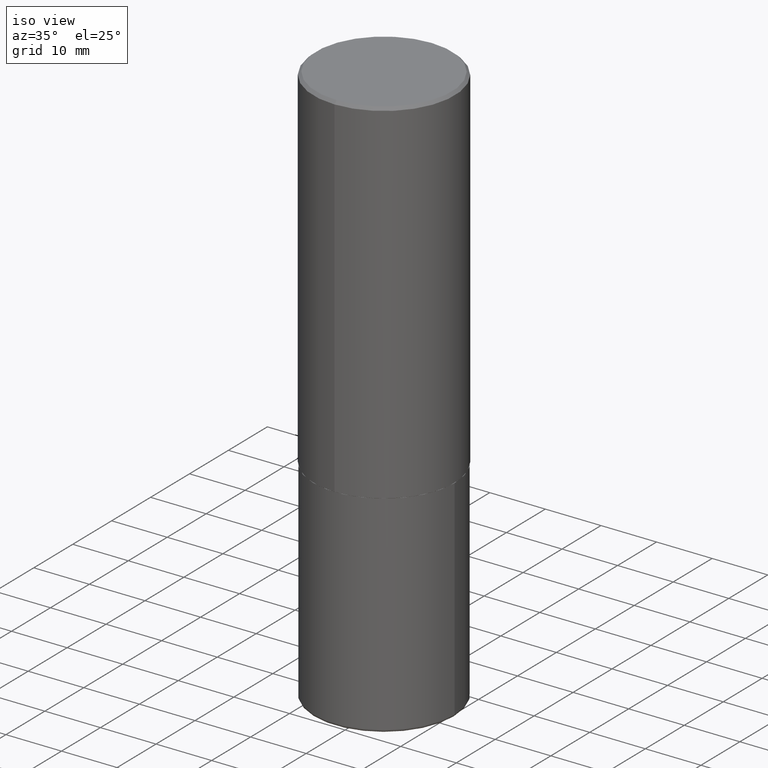
[diagram: clean part render]
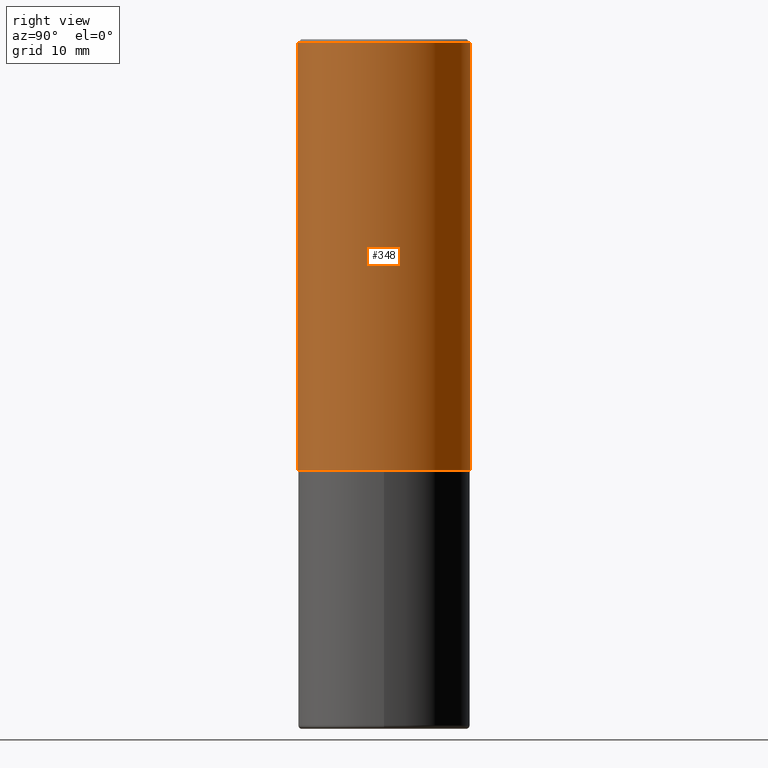
[diagram: tour spotlight — one face highlighted and labeled with its STEP entity id]
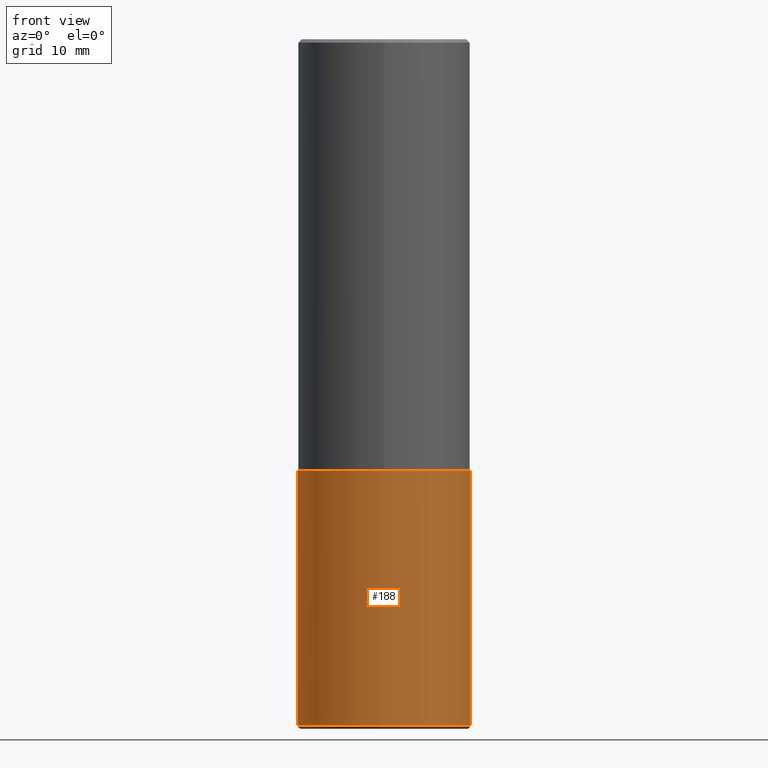
[diagram: tour spotlight — one face highlighted and labeled with its STEP entity id]
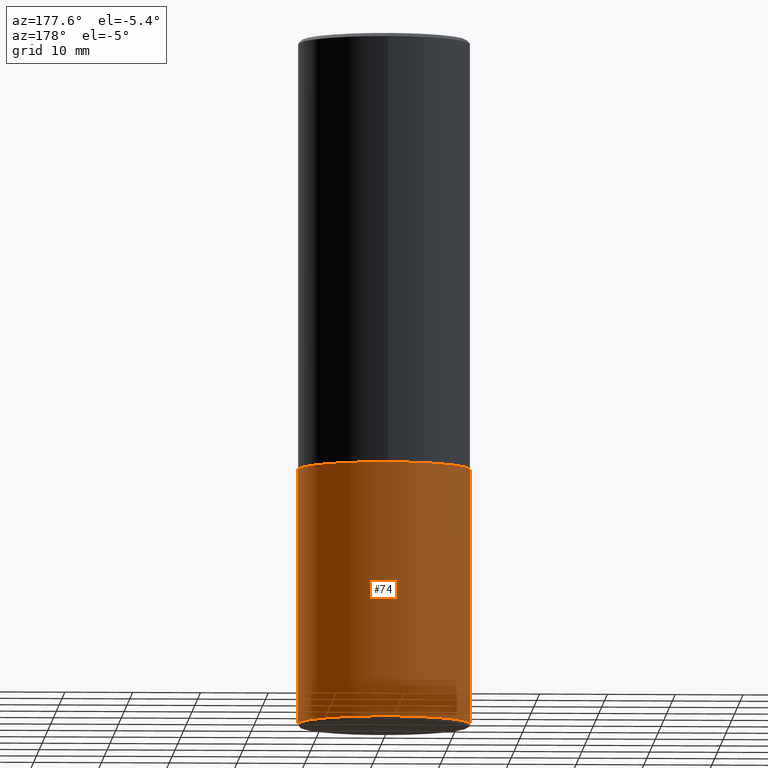
[diagram: tour spotlight — one face highlighted and labeled with its STEP entity id]
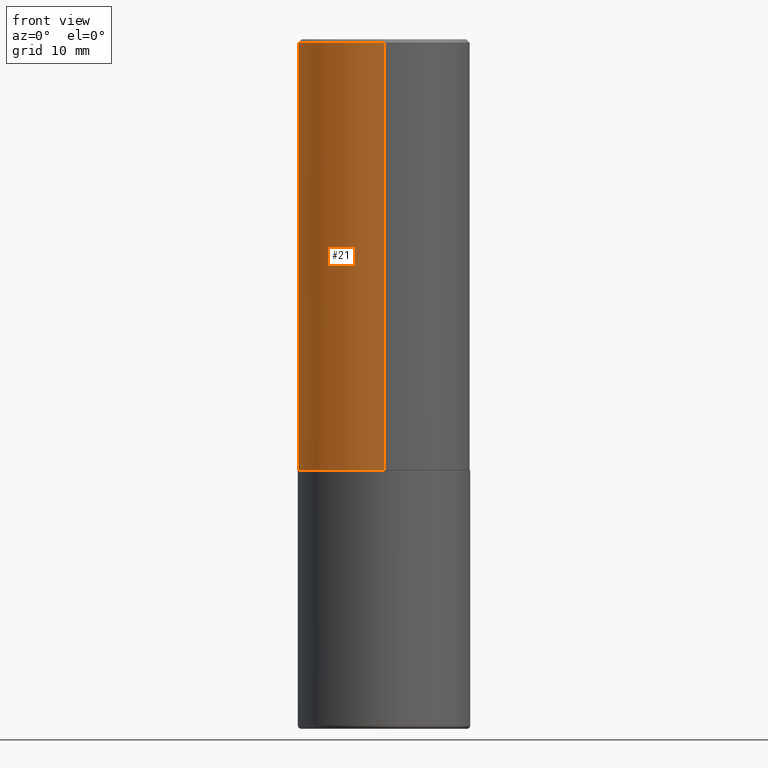
[diagram: tour spotlight — one face highlighted and labeled with its STEP entity id]
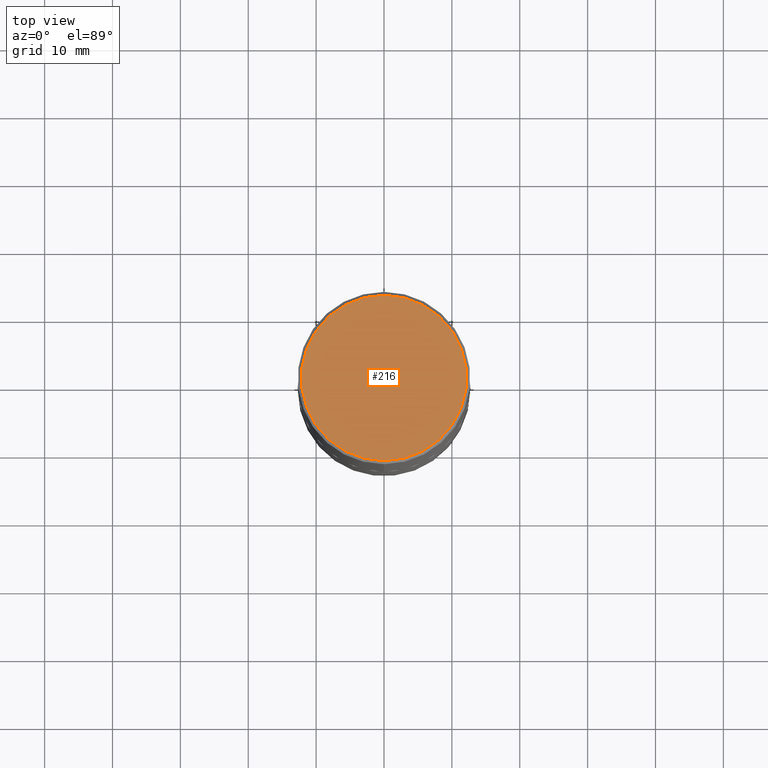
[diagram: tour spotlight — one face highlighted and labeled with its STEP entity id]
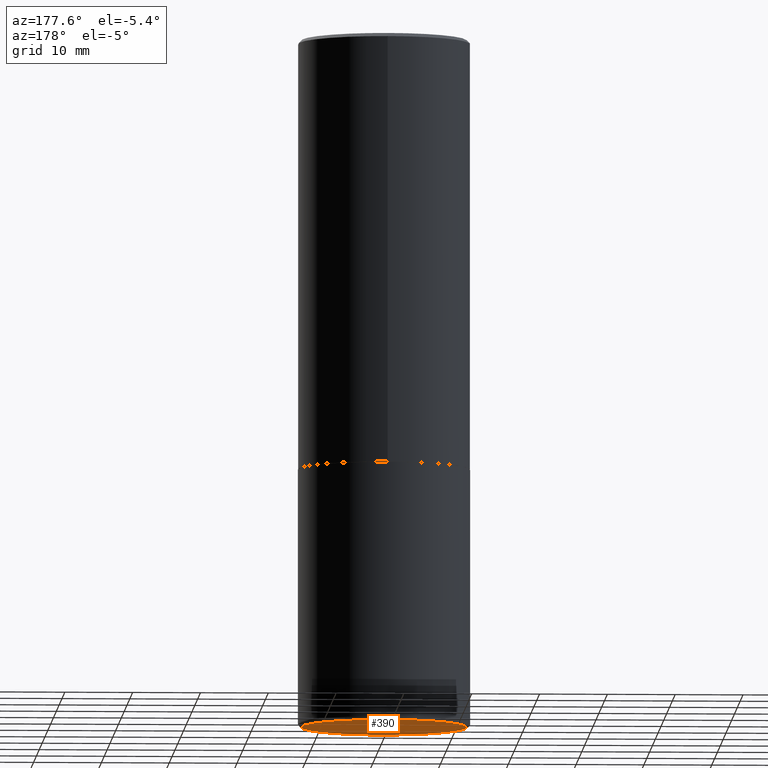
[diagram: tour spotlight — one face highlighted and labeled with its STEP entity id]
A machine part: a face-by-face anatomy tour. The part has 14 B-rep faces; the first image is the clean iso view, then the 6 largest visible faces are spotlighted one at a time (largest first), each with its STEP entity span.

Face 1 — right view, entity #348. In plain terms, the highlighted cylindrical surface (partial cylindrical patch) has radius 12.7 mm, axis along (-0, 0, 1).
Definition (entity closure, byte-faithful):
#7 = DIRECTION ( 'NONE',  ( -6.982962677686265922E-15, -1.000000000000000000, 3.490407148774155485E-15 ) ) ;
#8 = EDGE_CURVE ( 'NONE', #250, #210, #212, .T. ) ;
#19 = ORIENTED_EDGE ( 'NONE', *, *, #412, .F. ) ;
#41 = CARTESIAN_POINT ( 'NONE',  ( -3.430248998885764992E-15, -0.5000000000000001110, -0.01999999999999835937 ) ) ;
#72 = CARTESIAN_POINT ( 'NONE',  ( 0.000000000000000000, 0.000000000000000000, 0.000000000000000000 ) ) ;
#76 = DIRECTION ( 'NONE',  ( -2.446218909101186334E-29, 3.490407148774155485E-15, 1.000000000000000000 ) ) ;
#93 = CARTESIAN_POINT ( 'NONE',  ( -3.491481338843073796E-15, -0.5000000000000089928, -2.498999999999998778 ) ) ;
#99 = AXIS2_PLACEMENT_3D ( 'NONE', #262, #201, #331 ) ;
#102 = FACE_OUTER_BOUND ( 'NONE', #124, .T. ) ;
#106 = DIRECTION ( 'NONE',  ( -2.446218909101186334E-29, 3.490407148774155485E-15, 1.000000000000000000 ) ) ;
#114 = CARTESIAN_POINT ( 'NONE',  ( 3.491481338843133355E-15, 0.4999999999999999445, -0.02000000000000185310 ) ) ;
#124 = EDGE_LOOP ( 'NONE', ( #285, #152, #401, #19 ) ) ;
#150 = LINE ( 'NONE', #362, #170 ) ;
#152 = ORIENTED_EDGE ( 'NONE', *, *, #320, .T. ) ;
#153 = CARTESIAN_POINT ( 'NONE',  ( 3.552713678800533273E-15, 0.4999999999999916178, -2.499000000000001886 ) ) ;
#156 = CIRCLE ( 'NONE', #410, 0.5000000000000000000 ) ;
#170 = VECTOR ( 'NONE', #76, 39.37007874015748143 ) ;
#177 = CYLINDRICAL_SURFACE ( 'NONE', #371, 0.5000000000000001110 ) ;
#183 = VECTOR ( 'NONE', #259, 39.37007874015748143 ) ;
#200 = DIRECTION ( 'NONE',  ( -2.446218909101186334E-29, 3.490407148774155485E-15, 1.000000000000000000 ) ) ;
#201 = DIRECTION ( 'NONE',  ( -2.446218909101186334E-29, 3.490407148774155485E-15, 1.000000000000000000 ) ) ;
#210 = VERTEX_POINT ( 'NONE', #153 ) ;
#212 = CIRCLE ( 'NONE', #99, 0.5000000000000002220 ) ;
#232 = CARTESIAN_POINT ( 'NONE',  ( 3.552713678800501718E-15, 0.5000000000000001110, -1.745203574387078137E-15 ) ) ;
#250 = VERTEX_POINT ( 'NONE', #93 ) ;
#259 = DIRECTION ( 'NONE',  ( -2.446218909101186334E-29, 3.490407148774155485E-15, 1.000000000000000000 ) ) ;
#260 = CARTESIAN_POINT ( 'NONE',  ( 4.892437818202398557E-31, -6.980814297548349082E-17, -0.02000000000000010797 ) ) ;
#262 = CARTESIAN_POINT ( 'NONE',  ( 6.113101053843866582E-29, -8.722527464786616105E-15, -2.499000000000000110 ) ) ;
#285 = ORIENTED_EDGE ( 'NONE', *, *, #8, .T. ) ;
#299 = VERTEX_POINT ( 'NONE', #41 ) ;
#300 = LINE ( 'NONE', #232, #183 ) ;
#320 = EDGE_CURVE ( 'NONE', #210, #403, #300, .T. ) ;
#331 = DIRECTION ( 'NONE',  ( -6.982962677686266711E-15, -1.000000000000000000, 3.278217592397114284E-15 ) ) ;
#345 = EDGE_CURVE ( 'NONE', #299, #403, #156, .T. ) ;
#348 = ADVANCED_FACE ( 'NONE', ( #102 ), #177, .T. ) ;
#362 = CARTESIAN_POINT ( 'NONE',  ( -3.491481338843133750E-15, -0.5000000000000001110, 1.745203574387078137E-15 ) ) ;
#371 = AXIS2_PLACEMENT_3D ( 'NONE', #72, #200, #7 ) ;
#388 = DIRECTION ( 'NONE',  ( -6.982962677686265922E-15, -1.000000000000000000, 3.491643216902136408E-15 ) ) ;
#401 = ORIENTED_EDGE ( 'NONE', *, *, #345, .F. ) ;
#403 = VERTEX_POINT ( 'NONE', #114 ) ;
#410 = AXIS2_PLACEMENT_3D ( 'NONE', #260, #106, #388 ) ;
#412 = EDGE_CURVE ( 'NONE', #250, #299, #150, .T. ) ;

Face 2 — front view, entity #188. In plain terms, the highlighted cylindrical surface (partial cylindrical patch) has radius 12.7 mm, axis along (-0, 0, 1).
Definition (entity closure, byte-faithful):
#38 = LINE ( 'NONE', #171, #144 ) ;
#44 = AXIS2_PLACEMENT_3D ( 'NONE', #340, #59, #373 ) ;
#58 = ORIENTED_EDGE ( 'NONE', *, *, #67, .T. ) ;
#59 = DIRECTION ( 'NONE',  ( -2.445468806185136597E-29, 3.491481338843145583E-15, 1.000000000000000000 ) ) ;
#62 = VERTEX_POINT ( 'NONE', #94 ) ;
#67 = EDGE_CURVE ( 'NONE', #334, #277, #131, .T. ) ;
#71 = CARTESIAN_POINT ( 'NONE',  ( -0.5000000000000000000, -7.759685859051291847E-15, -2.500000000000000000 ) ) ;
#81 = DIRECTION ( 'NONE',  ( 1.000000000000000000, -6.982962677686267499E-15, 0.000000000000000000 ) ) ;
#86 = FACE_OUTER_BOUND ( 'NONE', #339, .T. ) ;
#90 = ORIENTED_EDGE ( 'NONE', *, *, #139, .T. ) ;
#92 = ORIENTED_EDGE ( 'NONE', *, *, #263, .F. ) ;
#94 = CARTESIAN_POINT ( 'NONE',  ( -0.4999999999999998335, -1.034338204979522126E-14, -3.979999999999999982 ) ) ;
#95 = AXIS2_PLACEMENT_3D ( 'NONE', #97, #354, #98 ) ;
#97 = CARTESIAN_POINT ( 'NONE',  ( 6.113672015462842613E-29, -8.728703347107864943E-15, -2.500000000000000000 ) ) ;
#98 = DIRECTION ( 'NONE',  ( 1.000000000000000000, -6.982962677686269077E-15, 0.000000000000000000 ) ) ;
#104 = VECTOR ( 'NONE', #353, 39.37007874015748143 ) ;
#131 = LINE ( 'NONE', #254, #104 ) ;
#139 = EDGE_CURVE ( 'NONE', #62, #334, #205, .T. ) ;
#144 = VECTOR ( 'NONE', #298, 39.37007874015748143 ) ;
#161 = CYLINDRICAL_SURFACE ( 'NONE', #44, 0.5000000000000000000 ) ;
#171 = CARTESIAN_POINT ( 'NONE',  ( -0.5000000000000000000, 3.552713678800500929E-15, -2.459467545127452891E-29 ) ) ;
#173 = CARTESIAN_POINT ( 'NONE',  ( 0.4999999999999998335, -1.738757706743885397E-14, -3.979999999999999982 ) ) ;
#188 = ADVANCED_FACE ( 'NONE', ( #86 ), #161, .T. ) ;
#205 = CIRCLE ( 'NONE', #406, 0.4999999999999999445 ) ;
#230 = CARTESIAN_POINT ( 'NONE',  ( 0.5000000000000000000, -1.222018468595099830E-14, -2.500000000000000000 ) ) ;
#254 = CARTESIAN_POINT ( 'NONE',  ( 0.5000000000000000000, -3.491481338843133355E-15, 2.438088387897967896E-29 ) ) ;
#263 = EDGE_CURVE ( 'NONE', #279, #277, #271, .T. ) ;
#271 = CIRCLE ( 'NONE', #95, 0.5000000000000000000 ) ;
#274 = CARTESIAN_POINT ( 'NONE',  ( 9.732965848616844417E-29, -1.389609572859572061E-14, -3.979999999999999982 ) ) ;
#277 = VERTEX_POINT ( 'NONE', #230 ) ;
#279 = VERTEX_POINT ( 'NONE', #71 ) ;
#296 = ORIENTED_EDGE ( 'NONE', *, *, #385, .F. ) ;
#298 = DIRECTION ( 'NONE',  ( -2.445468806185136877E-29, 3.491481338843145188E-15, 1.000000000000000000 ) ) ;
#334 = VERTEX_POINT ( 'NONE', #173 ) ;
#339 = EDGE_LOOP ( 'NONE', ( #296, #90, #58, #92 ) ) ;
#340 = CARTESIAN_POINT ( 'NONE',  ( 0.000000000000000000, 0.000000000000000000, 0.000000000000000000 ) ) ;
#353 = DIRECTION ( 'NONE',  ( -2.445468806185136877E-29, 3.491481338843145188E-15, 1.000000000000000000 ) ) ;
#354 = DIRECTION ( 'NONE',  ( -2.445468806185136597E-29, 3.491481338843145583E-15, 1.000000000000000000 ) ) ;
#373 = DIRECTION ( 'NONE',  ( 1.000000000000000000, -6.982962677686266711E-15, 4.876176775795935793E-29 ) ) ;
#385 = EDGE_CURVE ( 'NONE', #62, #279, #38, .T. ) ;
#399 = DIRECTION ( 'NONE',  ( -2.445468806185136597E-29, 3.491481338843145583E-15, 1.000000000000000000 ) ) ;
#406 = AXIS2_PLACEMENT_3D ( 'NONE', #274, #399, #81 ) ;

Face 3 — auxiliary view, entity #74. In plain terms, the highlighted cylindrical surface (partial cylindrical patch) has radius 12.7 mm, axis along (-0, 0, 1).
Definition (entity closure, byte-faithful):
#2 = CARTESIAN_POINT ( 'NONE',  ( 0.000000000000000000, 0.000000000000000000, 0.000000000000000000 ) ) ;
#10 = ORIENTED_EDGE ( 'NONE', *, *, #67, .F. ) ;
#27 = ORIENTED_EDGE ( 'NONE', *, *, #82, .F. ) ;
#38 = LINE ( 'NONE', #171, #144 ) ;
#42 = EDGE_CURVE ( 'NONE', #334, #62, #374, .T. ) ;
#52 = CARTESIAN_POINT ( 'NONE',  ( 6.113672015462842613E-29, -8.728703347107864943E-15, -2.500000000000000000 ) ) ;
#62 = VERTEX_POINT ( 'NONE', #94 ) ;
#67 = EDGE_CURVE ( 'NONE', #334, #277, #131, .T. ) ;
#71 = CARTESIAN_POINT ( 'NONE',  ( -0.5000000000000000000, -7.759685859051291847E-15, -2.500000000000000000 ) ) ;
#74 = ADVANCED_FACE ( 'NONE', ( #290 ), #129, .T. ) ;
#82 = EDGE_CURVE ( 'NONE', #277, #279, #143, .T. ) ;
#94 = CARTESIAN_POINT ( 'NONE',  ( -0.4999999999999998335, -1.034338204979522126E-14, -3.979999999999999982 ) ) ;
#104 = VECTOR ( 'NONE', #353, 39.37007874015748143 ) ;
#112 = ORIENTED_EDGE ( 'NONE', *, *, #42, .T. ) ;
#129 = CYLINDRICAL_SURFACE ( 'NONE', #169, 0.5000000000000000000 ) ;
#131 = LINE ( 'NONE', #254, #104 ) ;
#132 = AXIS2_PLACEMENT_3D ( 'NONE', #52, #404, #309 ) ;
#143 = CIRCLE ( 'NONE', #132, 0.5000000000000000000 ) ;
#144 = VECTOR ( 'NONE', #298, 39.37007874015748143 ) ;
#159 = DIRECTION ( 'NONE',  ( 1.000000000000000000, -6.982962677686267499E-15, 0.000000000000000000 ) ) ;
#167 = DIRECTION ( 'NONE',  ( -2.445468806185136597E-29, 3.491481338843145583E-15, 1.000000000000000000 ) ) ;
#169 = AXIS2_PLACEMENT_3D ( 'NONE', #2, #386, #365 ) ;
#171 = CARTESIAN_POINT ( 'NONE',  ( -0.5000000000000000000, 3.552713678800500929E-15, -2.459467545127452891E-29 ) ) ;
#173 = CARTESIAN_POINT ( 'NONE',  ( 0.4999999999999998335, -1.738757706743885397E-14, -3.979999999999999982 ) ) ;
#206 = EDGE_LOOP ( 'NONE', ( #112, #231, #27, #10 ) ) ;
#230 = CARTESIAN_POINT ( 'NONE',  ( 0.5000000000000000000, -1.222018468595099830E-14, -2.500000000000000000 ) ) ;
#231 = ORIENTED_EDGE ( 'NONE', *, *, #385, .T. ) ;
#254 = CARTESIAN_POINT ( 'NONE',  ( 0.5000000000000000000, -3.491481338843133355E-15, 2.438088387897967896E-29 ) ) ;
#277 = VERTEX_POINT ( 'NONE', #230 ) ;
#279 = VERTEX_POINT ( 'NONE', #71 ) ;
#290 = FACE_OUTER_BOUND ( 'NONE', #206, .T. ) ;
#298 = DIRECTION ( 'NONE',  ( -2.445468806185136877E-29, 3.491481338843145188E-15, 1.000000000000000000 ) ) ;
#309 = DIRECTION ( 'NONE',  ( 1.000000000000000000, -6.982962677686269077E-15, 0.000000000000000000 ) ) ;
#334 = VERTEX_POINT ( 'NONE', #173 ) ;
#335 = AXIS2_PLACEMENT_3D ( 'NONE', #415, #167, #159 ) ;
#353 = DIRECTION ( 'NONE',  ( -2.445468806185136877E-29, 3.491481338843145188E-15, 1.000000000000000000 ) ) ;
#365 = DIRECTION ( 'NONE',  ( 1.000000000000000000, -6.982962677686266711E-15, 4.876176775795935793E-29 ) ) ;
#374 = CIRCLE ( 'NONE', #335, 0.4999999999999999445 ) ;
#385 = EDGE_CURVE ( 'NONE', #62, #279, #38, .T. ) ;
#386 = DIRECTION ( 'NONE',  ( -2.445468806185136597E-29, 3.491481338843145583E-15, 1.000000000000000000 ) ) ;
#404 = DIRECTION ( 'NONE',  ( -2.445468806185136597E-29, 3.491481338843145583E-15, 1.000000000000000000 ) ) ;
#415 = CARTESIAN_POINT ( 'NONE',  ( 9.732965848616844417E-29, -1.389609572859572061E-14, -3.979999999999999982 ) ) ;

Face 4 — front view, entity #21. In plain terms, the highlighted cylindrical surface (partial cylindrical patch) has radius 12.7 mm, axis along (-0, 0, 1).
Definition (entity closure, byte-faithful):
#16 = AXIS2_PLACEMENT_3D ( 'NONE', #140, #269, #145 ) ;
#21 = ADVANCED_FACE ( 'NONE', ( #61 ), #141, .T. ) ;
#26 = CIRCLE ( 'NONE', #264, 0.5000000000000002220 ) ;
#29 = CARTESIAN_POINT ( 'NONE',  ( 6.113101053843866582E-29, -8.722527464786616105E-15, -2.499000000000000110 ) ) ;
#40 = EDGE_CURVE ( 'NONE', #210, #250, #26, .T. ) ;
#41 = CARTESIAN_POINT ( 'NONE',  ( -3.430248998885764992E-15, -0.5000000000000001110, -0.01999999999999835937 ) ) ;
#61 = FACE_OUTER_BOUND ( 'NONE', #203, .T. ) ;
#76 = DIRECTION ( 'NONE',  ( -2.446218909101186334E-29, 3.490407148774155485E-15, 1.000000000000000000 ) ) ;
#93 = CARTESIAN_POINT ( 'NONE',  ( -3.491481338843073796E-15, -0.5000000000000089928, -2.498999999999998778 ) ) ;
#96 = DIRECTION ( 'NONE',  ( -6.982962677686265922E-15, -1.000000000000000000, 3.490407148774155485E-15 ) ) ;
#114 = CARTESIAN_POINT ( 'NONE',  ( 3.491481338843133355E-15, 0.4999999999999999445, -0.02000000000000185310 ) ) ;
#127 = DIRECTION ( 'NONE',  ( -2.446218909101186334E-29, 3.490407148774155485E-15, 1.000000000000000000 ) ) ;
#138 = EDGE_CURVE ( 'NONE', #403, #299, #370, .T. ) ;
#140 = CARTESIAN_POINT ( 'NONE',  ( 4.892437818202398557E-31, -6.980814297548349082E-17, -0.02000000000000010797 ) ) ;
#141 = CYLINDRICAL_SURFACE ( 'NONE', #234, 0.5000000000000001110 ) ;
#145 = DIRECTION ( 'NONE',  ( -6.982962677686265922E-15, -1.000000000000000000, 3.491643216902136408E-15 ) ) ;
#150 = LINE ( 'NONE', #362, #170 ) ;
#153 = CARTESIAN_POINT ( 'NONE',  ( 3.552713678800533273E-15, 0.4999999999999916178, -2.499000000000001886 ) ) ;
#157 = ORIENTED_EDGE ( 'NONE', *, *, #412, .T. ) ;
#163 = DIRECTION ( 'NONE',  ( -6.982962677686266711E-15, -1.000000000000000000, 3.278217592397114284E-15 ) ) ;
#170 = VECTOR ( 'NONE', #76, 39.37007874015748143 ) ;
#183 = VECTOR ( 'NONE', #259, 39.37007874015748143 ) ;
#203 = EDGE_LOOP ( 'NONE', ( #379, #306, #157, #350 ) ) ;
#210 = VERTEX_POINT ( 'NONE', #153 ) ;
#232 = CARTESIAN_POINT ( 'NONE',  ( 3.552713678800501718E-15, 0.5000000000000001110, -1.745203574387078137E-15 ) ) ;
#234 = AXIS2_PLACEMENT_3D ( 'NONE', #310, #396, #96 ) ;
#250 = VERTEX_POINT ( 'NONE', #93 ) ;
#259 = DIRECTION ( 'NONE',  ( -2.446218909101186334E-29, 3.490407148774155485E-15, 1.000000000000000000 ) ) ;
#264 = AXIS2_PLACEMENT_3D ( 'NONE', #29, #127, #163 ) ;
#269 = DIRECTION ( 'NONE',  ( -2.446218909101186334E-29, 3.490407148774155485E-15, 1.000000000000000000 ) ) ;
#299 = VERTEX_POINT ( 'NONE', #41 ) ;
#300 = LINE ( 'NONE', #232, #183 ) ;
#306 = ORIENTED_EDGE ( 'NONE', *, *, #40, .T. ) ;
#310 = CARTESIAN_POINT ( 'NONE',  ( 0.000000000000000000, 0.000000000000000000, 0.000000000000000000 ) ) ;
#320 = EDGE_CURVE ( 'NONE', #210, #403, #300, .T. ) ;
#350 = ORIENTED_EDGE ( 'NONE', *, *, #138, .F. ) ;
#362 = CARTESIAN_POINT ( 'NONE',  ( -3.491481338843133750E-15, -0.5000000000000001110, 1.745203574387078137E-15 ) ) ;
#370 = CIRCLE ( 'NONE', #16, 0.5000000000000000000 ) ;
#379 = ORIENTED_EDGE ( 'NONE', *, *, #320, .F. ) ;
#396 = DIRECTION ( 'NONE',  ( -2.446218909101186334E-29, 3.490407148774155485E-15, 1.000000000000000000 ) ) ;
#403 = VERTEX_POINT ( 'NONE', #114 ) ;
#412 = EDGE_CURVE ( 'NONE', #250, #299, #150, .T. ) ;

Face 5 — top view, entity #216. In plain terms, the highlighted planar face has unit normal (0, -0, -1).
Definition (entity closure, byte-faithful):
#23 = ORIENTED_EDGE ( 'NONE', *, *, #297, .T. ) ;
#36 = CARTESIAN_POINT ( 'NONE',  ( 5.129053803320841623E-45, -7.318431721278877929E-31, -2.096727232480353724E-16 ) ) ;
#48 = CARTESIAN_POINT ( 'NONE',  ( 3.421651712066271240E-15, 0.4800000000000002043, -1.885068154659630992E-15 ) ) ;
#80 = VERTEX_POINT ( 'NONE', #48 ) ;
#91 = DIRECTION ( 'NONE',  ( 2.446218909101186054E-29, -3.490407148774155485E-15, -1.000000000000000000 ) ) ;
#166 = CIRCLE ( 'NONE', #176, 0.4800000000000002043 ) ;
#168 = DIRECTION ( 'NONE',  ( -2.446218909101186334E-29, 3.490407148774155485E-15, 1.000000000000000000 ) ) ;
#176 = AXIS2_PLACEMENT_3D ( 'NONE', #358, #168, #301 ) ;
#178 = CARTESIAN_POINT ( 'NONE',  ( -3.361644018908050450E-15, -0.4800000000000002043, 1.465722708163559804E-15 ) ) ;
#216 = ADVANCED_FACE ( 'NONE', ( #408 ), #248, .F. ) ;
#248 = PLANE ( 'NONE',  #256 ) ;
#256 = AXIS2_PLACEMENT_3D ( 'NONE', #380, #91, #344 ) ;
#268 = EDGE_CURVE ( 'NONE', #80, #407, #330, .T. ) ;
#293 = DIRECTION ( 'NONE',  ( -6.982962677686265922E-15, -1.000000000000000000, 3.490407148774155485E-15 ) ) ;
#297 = EDGE_CURVE ( 'NONE', #407, #80, #166, .T. ) ;
#301 = DIRECTION ( 'NONE',  ( -6.982962677686265922E-15, -1.000000000000000000, 3.490407148774155485E-15 ) ) ;
#328 = DIRECTION ( 'NONE',  ( -2.446218909101186334E-29, 3.490407148774155485E-15, 1.000000000000000000 ) ) ;
#330 = CIRCLE ( 'NONE', #383, 0.4800000000000002043 ) ;
#336 = ORIENTED_EDGE ( 'NONE', *, *, #268, .T. ) ;
#343 = EDGE_LOOP ( 'NONE', ( #336, #23 ) ) ;
#344 = DIRECTION ( 'NONE',  ( 6.982962677686265922E-15, 1.000000000000000000, -3.490407148774155485E-15 ) ) ;
#358 = CARTESIAN_POINT ( 'NONE',  ( 5.129053803320841623E-45, -7.318431721278877929E-31, -2.096727232480353724E-16 ) ) ;
#380 = CARTESIAN_POINT ( 'NONE',  ( 3.351822085289409125E-15, 0.4800000000000002043, -1.780231793035613097E-15 ) ) ;
#383 = AXIS2_PLACEMENT_3D ( 'NONE', #36, #328, #293 ) ;
#407 = VERTEX_POINT ( 'NONE', #178 ) ;
#408 = FACE_OUTER_BOUND ( 'NONE', #343, .T. ) ;

Face 6 — auxiliary view, entity #390. In plain terms, the highlighted planar face has unit normal (0, -0, -1).
Definition (entity closure, byte-faithful):
#9 = EDGE_CURVE ( 'NONE', #182, #363, #323, .T. ) ;
#39 = ORIENTED_EDGE ( 'NONE', *, *, #9, .F. ) ;
#47 = DIRECTION ( 'NONE',  ( 1.000000000000000000, -6.982962677686268288E-15, 0.000000000000000000 ) ) ;
#77 = CARTESIAN_POINT ( 'NONE',  ( 9.781875224740546387E-29, -1.396592535537258233E-14, -4.000000000000000000 ) ) ;
#78 = DIRECTION ( 'NONE',  ( -2.445468806185136597E-29, 3.491481338843145583E-15, 1.000000000000000000 ) ) ;
#83 = FACE_OUTER_BOUND ( 'NONE', #318, .T. ) ;
#87 = DIRECTION ( 'NONE',  ( 2.438088387897960049E-29, -3.491481338843145188E-15, -1.000000000000000000 ) ) ;
#103 = CARTESIAN_POINT ( 'NONE',  ( 9.781875224740546387E-29, -1.396592535537258233E-14, -4.000000000000000000 ) ) ;
#182 = VERTEX_POINT ( 'NONE', #208 ) ;
#208 = CARTESIAN_POINT ( 'NONE',  ( -0.4799999999999999822, -1.044935113675966299E-14, -4.000000000000000000 ) ) ;
#227 = AXIS2_PLACEMENT_3D ( 'NONE', #77, #78, #47 ) ;
#237 = DIRECTION ( 'NONE',  ( -2.445468806185136597E-29, 3.491481338843145583E-15, 1.000000000000000000 ) ) ;
#258 = ORIENTED_EDGE ( 'NONE', *, *, #387, .F. ) ;
#265 = AXIS2_PLACEMENT_3D ( 'NONE', #395, #87, #398 ) ;
#267 = PLANE ( 'NONE',  #265 ) ;
#286 = AXIS2_PLACEMENT_3D ( 'NONE', #103, #237, #366 ) ;
#317 = CIRCLE ( 'NONE', #227, 0.4799999999999999822 ) ;
#318 = EDGE_LOOP ( 'NONE', ( #258, #39 ) ) ;
#323 = CIRCLE ( 'NONE', #286, 0.4799999999999999822 ) ;
#360 = CARTESIAN_POINT ( 'NONE',  ( 0.4799999999999999822, -1.731774744066199067E-14, -4.000000000000000000 ) ) ;
#363 = VERTEX_POINT ( 'NONE', #360 ) ;
#366 = DIRECTION ( 'NONE',  ( 1.000000000000000000, -6.982962677686268288E-15, 0.000000000000000000 ) ) ;
#387 = EDGE_CURVE ( 'NONE', #363, #182, #317, .T. ) ;
#390 = ADVANCED_FACE ( 'NONE', ( #83 ), #267, .T. ) ;
#395 = CARTESIAN_POINT ( 'NONE',  ( 9.781875224740546387E-29, -1.396592535537258233E-14, -4.000000000000000000 ) ) ;
#398 = DIRECTION ( 'NONE',  ( -1.000000000000000000, 6.982962677686265922E-15, -4.876176775795935793E-29 ) ) ;